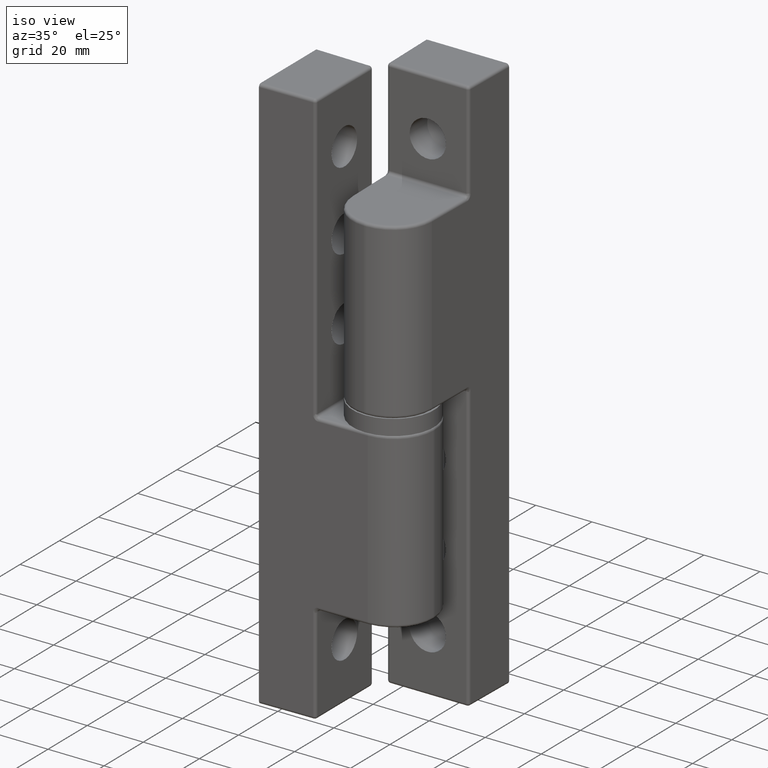
[diagram: clean part render]
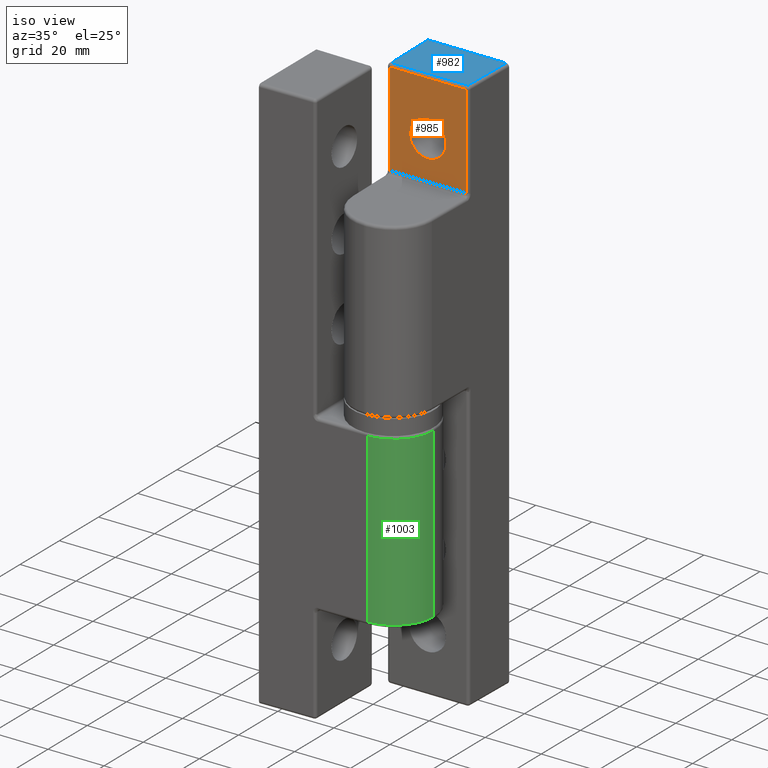
[diagram: same view with three faces highlighted in distinct colors, each labeled with its STEP entity id]
A machine part, iso view with three faces highlighted in distinct colors.
Their STEP definitions:

[orange] entity #985 — the highlighted planar face has unit normal (0, 1, 0).
#49=FACE_BOUND('',#330,.T.);
#86=PLANE('',#1091);
#116=LINE('',#1669,#160);
#120=LINE('',#1692,#164);
#122=LINE('',#1695,#166);
#126=LINE('',#1704,#170);
#160=VECTOR('',#1254,27.2688609809314);
#164=VECTOR('',#1280,33.5);
#166=VECTOR('',#1284,27.2688609809314);
#170=VECTOR('',#1294,33.5);
#252=FACE_OUTER_BOUND('',#329,.T.);
#329=EDGE_LOOP('',(#800,#801,#802,#803));
#330=EDGE_LOOP('',(#804));
#438=CIRCLE('',#1092,6.5);
#499=VERTEX_POINT('',#1595);
#505=VERTEX_POINT('',#1637);
#515=VERTEX_POINT('',#1672);
#521=VERTEX_POINT('',#1687);
#536=VERTEX_POINT('',#1737);
#607=EDGE_CURVE('',#499,#505,#116,.T.);
#618=EDGE_CURVE('',#505,#521,#120,.T.);
#620=EDGE_CURVE('',#521,#515,#122,.T.);
#625=EDGE_CURVE('',#515,#499,#126,.T.);
#641=EDGE_CURVE('',#536,#536,#438,.T.);
#800=ORIENTED_EDGE('',*,*,#607,.F.);
#801=ORIENTED_EDGE('',*,*,#625,.F.);
#802=ORIENTED_EDGE('',*,*,#620,.F.);
#803=ORIENTED_EDGE('',*,*,#618,.F.);
#804=ORIENTED_EDGE('',*,*,#641,.T.);
#985=ADVANCED_FACE('',(#252,#49),#86,.F.);
#1091=AXIS2_PLACEMENT_3D('',#1736,#1325,#1326);
#1092=AXIS2_PLACEMENT_3D('',#1738,#1327,#1328);
#1254=DIRECTION('',(-1.,-1.83697019872103E-16,0.));
#1280=DIRECTION('',(0.,0.,-1.));
#1284=DIRECTION('',(1.,1.83697019872103E-16,0.));
#1294=DIRECTION('',(0.,0.,1.));
#1325=DIRECTION('center_axis',(1.83697019872103E-16,-1.,0.));
#1326=DIRECTION('ref_axis',(0.,0.,-1.));
#1327=DIRECTION('center_axis',(1.83697019872103E-16,-1.,0.));
#1328=DIRECTION('ref_axis',(1.,1.83697019872103E-16,0.));
#1595=CARTESIAN_POINT('',(13.6344304904657,20.,-65.5));
#1637=CARTESIAN_POINT('',(-13.6344304904657,20.,-65.5));
#1669=CARTESIAN_POINT('',(-7.5,20.,-65.5));
#1672=CARTESIAN_POINT('',(13.6344304904657,20.,-99.));
#1687=CARTESIAN_POINT('',(-13.6344304904657,20.,-99.));
#1692=CARTESIAN_POINT('',(-13.6344304904657,20.,-41.125));
#1695=CARTESIAN_POINT('',(-1.67501110627546E-15,20.,-99.));
#1704=CARTESIAN_POINT('',(13.6344304904657,20.,-41.125));
#1736=CARTESIAN_POINT('Origin',(-5.08499095248163E-15,20.,-82.25));
#1737=CARTESIAN_POINT('',(6.5,20.,-79.5));
#1738=CARTESIAN_POINT('Origin',(-4.44089209850063E-15,20.,-79.5));

[blue] entity #982 — the highlighted planar face has unit normal (-0, 0, -1).
#83=PLANE('',#1082);
#117=LINE('',#1681,#161);
#121=LINE('',#1694,#165);
#124=LINE('',#1701,#168);
#132=LINE('',#1718,#176);
#161=VECTOR('',#1267,19.0035129888439);
#165=VECTOR('',#1283,27.2688609809314);
#168=VECTOR('',#1290,19.0035129888439);
#176=VECTOR('',#1306,27.9996302117006);
#249=FACE_OUTER_BOUND('',#322,.T.);
#322=EDGE_LOOP('',(#778,#779,#780,#781));
#516=VERTEX_POINT('',#1674);
#518=VERTEX_POINT('',#1679);
#520=VERTEX_POINT('',#1685);
#522=VERTEX_POINT('',#1697);
#612=EDGE_CURVE('',#518,#516,#117,.T.);
#619=EDGE_CURVE('',#516,#520,#121,.T.);
#623=EDGE_CURVE('',#520,#522,#124,.T.);
#632=EDGE_CURVE('',#518,#522,#132,.T.);
#778=ORIENTED_EDGE('',*,*,#623,.F.);
#779=ORIENTED_EDGE('',*,*,#619,.F.);
#780=ORIENTED_EDGE('',*,*,#612,.F.);
#781=ORIENTED_EDGE('',*,*,#632,.T.);
#982=ADVANCED_FACE('',(#249),#83,.F.);
#1082=AXIS2_PLACEMENT_3D('',#1717,#1304,#1305);
#1267=DIRECTION('',(-0.019227214231343,0.999815140029847,0.));
#1283=DIRECTION('',(-1.,-1.83697019872103E-16,0.));
#1290=DIRECTION('',(-0.0192272142313431,-0.999815140029847,0.));
#1304=DIRECTION('center_axis',(0.,0.,1.));
#1305=DIRECTION('ref_axis',(1.,0.,0.));
#1306=DIRECTION('',(-1.,-1.83697019872103E-16,0.));
#1674=CARTESIAN_POINT('',(13.6344304904657,19.,-100.));
#1679=CARTESIAN_POINT('',(13.9998151058503,5.3271796117867E-15,-100.));
#1681=CARTESIAN_POINT('',(13.7892609808694,10.948814499007,-100.));
#1685=CARTESIAN_POINT('',(-13.6344304904657,19.,-100.));
#1694=CARTESIAN_POINT('',(-1.49131408640336E-15,19.,-100.));
#1697=CARTESIAN_POINT('',(-13.9998151058503,1.83730984376391E-16,-100.));
#1701=CARTESIAN_POINT('',(-13.421288086646,30.0834049986264,-100.));
#1717=CARTESIAN_POINT('Origin',(1.43081527507202E-15,21.6557343449037,-100.));
#1718=CARTESIAN_POINT('',(-15.,0.,-100.));

[green] entity #1003 — the highlighted cylindrical surface (partial cylindrical patch) has radius 14 mm, axis along (0, -0, 1).
#151=LINE('',#1859,#195);
#152=LINE('',#1861,#196);
#195=VECTOR('',#1417,60.);
#196=VECTOR('',#1420,60.);
#216=CYLINDRICAL_SURFACE('',#1129,14.);
#270=FACE_OUTER_BOUND('',#348,.T.);
#348=EDGE_LOOP('',(#871,#872,#873,#874));
#422=CIRCLE('',#1055,14.);
#452=CIRCLE('',#1114,14.);
#507=VERTEX_POINT('',#1642);
#509=VERTEX_POINT('',#1648);
#550=VERTEX_POINT('',#1821);
#552=VERTEX_POINT('',#1827);
#596=EDGE_CURVE('',#509,#507,#422,.T.);
#661=EDGE_CURVE('',#552,#550,#452,.T.);
#679=EDGE_CURVE('',#509,#550,#151,.T.);
#680=EDGE_CURVE('',#507,#552,#152,.T.);
#871=ORIENTED_EDGE('',*,*,#596,.F.);
#872=ORIENTED_EDGE('',*,*,#679,.T.);
#873=ORIENTED_EDGE('',*,*,#661,.F.);
#874=ORIENTED_EDGE('',*,*,#680,.F.);
#1003=ADVANCED_FACE('',(#270),#216,.T.);
#1055=AXIS2_PLACEMENT_3D('',#1650,#1229,#1230);
#1114=AXIS2_PLACEMENT_3D('',#1829,#1374,#1375);
#1129=AXIS2_PLACEMENT_3D('',#1860,#1418,#1419);
#1229=DIRECTION('center_axis',(0.,0.,-1.));
#1230=DIRECTION('ref_axis',(0.700275940529395,0.713872262464141,0.));
#1374=DIRECTION('center_axis',(0.,0.,1.));
#1375=DIRECTION('ref_axis',(0.700275940529395,0.713872262464141,0.));
#1417=DIRECTION('',(0.,0.,1.));
#1418=DIRECTION('center_axis',(0.,0.,1.));
#1419=DIRECTION('ref_axis',(0.999815140029847,0.0192272142313435,0.));
#1420=DIRECTION('',(0.,0.,1.));
#1642=CARTESIAN_POINT('',(14.2640542115531,38.2691809992388,-63.5));
#1648=CARTESIAN_POINT('',(0.266642251135247,52.,-63.5));
#1650=CARTESIAN_POINT('Origin',(0.266642251135253,38.,-63.5));
#1821=CARTESIAN_POINT('',(0.266642251135247,52.,-3.5));
#1827=CARTESIAN_POINT('',(14.2640542115531,38.2691809992388,-3.5));
#1829=CARTESIAN_POINT('Origin',(0.266642251135253,38.,-3.5));
#1859=CARTESIAN_POINT('',(0.266642251135247,52.,0.));
#1860=CARTESIAN_POINT('Origin',(0.266642251135253,38.,0.));
#1861=CARTESIAN_POINT('',(14.2640542115531,38.2691809992388,0.));